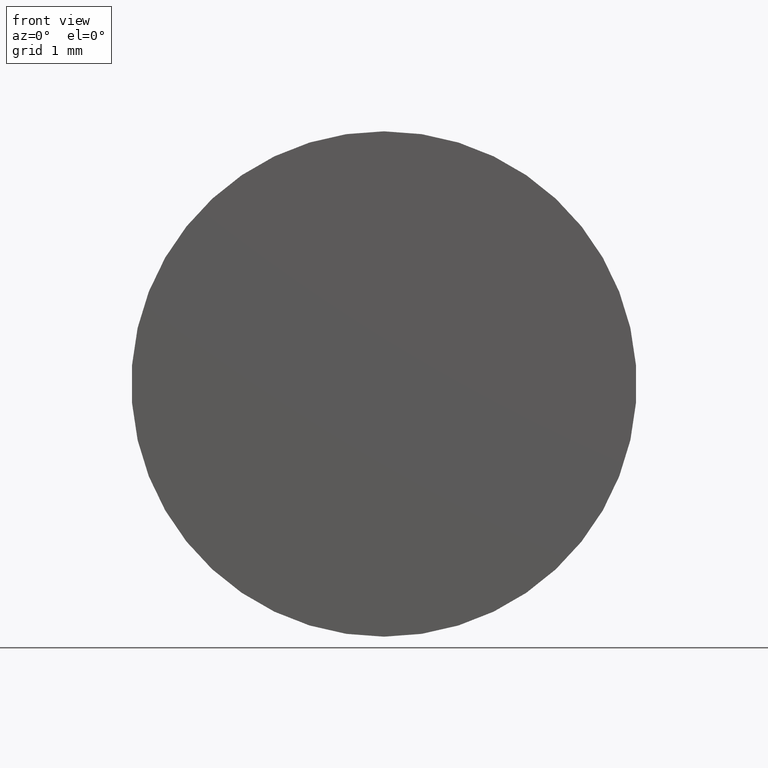
[diagram: clean part render]
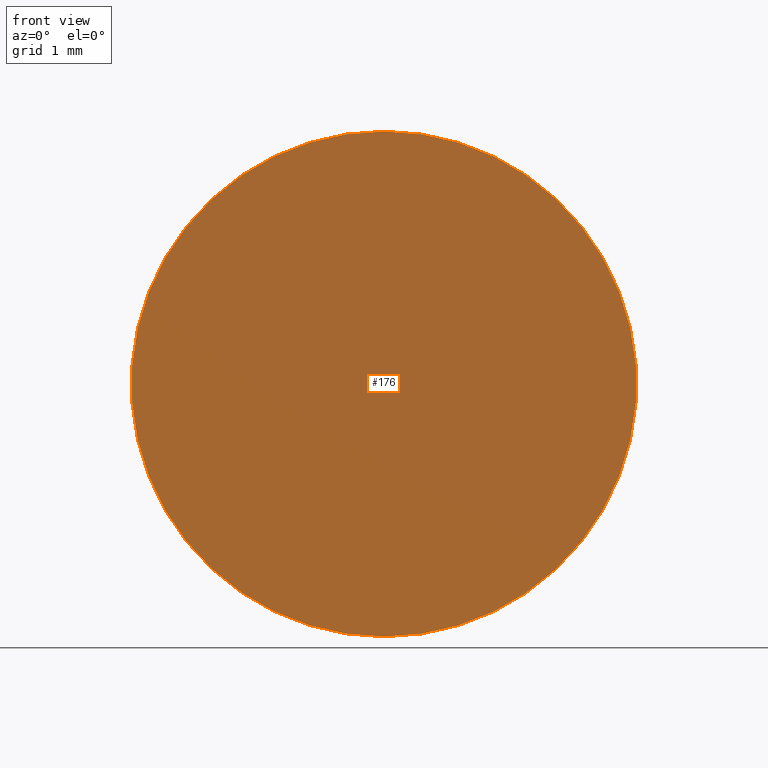
[diagram: same view with one face highlighted and labeled with its STEP entity id]
A machine part, front view. The second image highlights one B-rep face of the part: STEP entity #176.
In plain terms, the highlighted planar face has unit normal (0, -1, 0).
Its self-contained STEP definition (entity closure, byte-faithful):
#2 = DIRECTION ( 'NONE',  ( 0.000000000000000000, 0.000000000000000000, 1.000000000000000000 ) ) ;
#14 = VERTEX_POINT ( 'NONE', #156 ) ;
#26 = CARTESIAN_POINT ( 'NONE',  ( 0.000000000000000000, -4.336808689942017736E-16, 0.000000000000000000 ) ) ;
#27 = CIRCLE ( 'NONE', #100, 3.000000000000000000 ) ;
#43 = EDGE_CURVE ( 'NONE', #14, #140, #27, .T. ) ;
#48 = CIRCLE ( 'NONE', #150, 3.000000000000000000 ) ;
#58 = DIRECTION ( 'NONE',  ( -0.000000000000000000, 1.000000000000000000, -0.000000000000000000 ) ) ;
#59 = DIRECTION ( 'NONE',  ( 0.000000000000000000, 0.000000000000000000, 1.000000000000000000 ) ) ;
#60 = DIRECTION ( 'NONE',  ( 0.000000000000000000, -1.000000000000000000, 0.000000000000000000 ) ) ;
#72 = CARTESIAN_POINT ( 'NONE',  ( 0.000000000000000000, -1.836970198721029934E-16, 0.000000000000000000 ) ) ;
#87 = ORIENTED_EDGE ( 'NONE', *, *, #43, .F. ) ;
#100 = AXIS2_PLACEMENT_3D ( 'NONE', #187, #58, #2 ) ;
#107 = FACE_OUTER_BOUND ( 'NONE', #185, .T. ) ;
#111 = CARTESIAN_POINT ( 'NONE',  ( 0.000000000000000000, -4.336808689942017736E-16, 3.000000000000000000 ) ) ;
#125 = AXIS2_PLACEMENT_3D ( 'NONE', #72, #60, #200 ) ;
#140 = VERTEX_POINT ( 'NONE', #111 ) ;
#150 = AXIS2_PLACEMENT_3D ( 'NONE', #26, #189, #59 ) ;
#151 = PLANE ( 'NONE',  #125 ) ;
#156 = CARTESIAN_POINT ( 'NONE',  ( 3.673940397442059868E-16, -4.336808689942017736E-16, -3.000000000000000000 ) ) ;
#171 = ORIENTED_EDGE ( 'NONE', *, *, #190, .F. ) ;
#176 = ADVANCED_FACE ( 'NONE', ( #107 ), #151, .T. ) ;
#185 = EDGE_LOOP ( 'NONE', ( #171, #87 ) ) ;
#187 = CARTESIAN_POINT ( 'NONE',  ( 0.000000000000000000, -4.336808689942017736E-16, 0.000000000000000000 ) ) ;
#189 = DIRECTION ( 'NONE',  ( -0.000000000000000000, 1.000000000000000000, -0.000000000000000000 ) ) ;
#190 = EDGE_CURVE ( 'NONE', #140, #14, #48, .T. ) ;
#200 = DIRECTION ( 'NONE',  ( 0.000000000000000000, -0.000000000000000000, -1.000000000000000000 ) ) ;